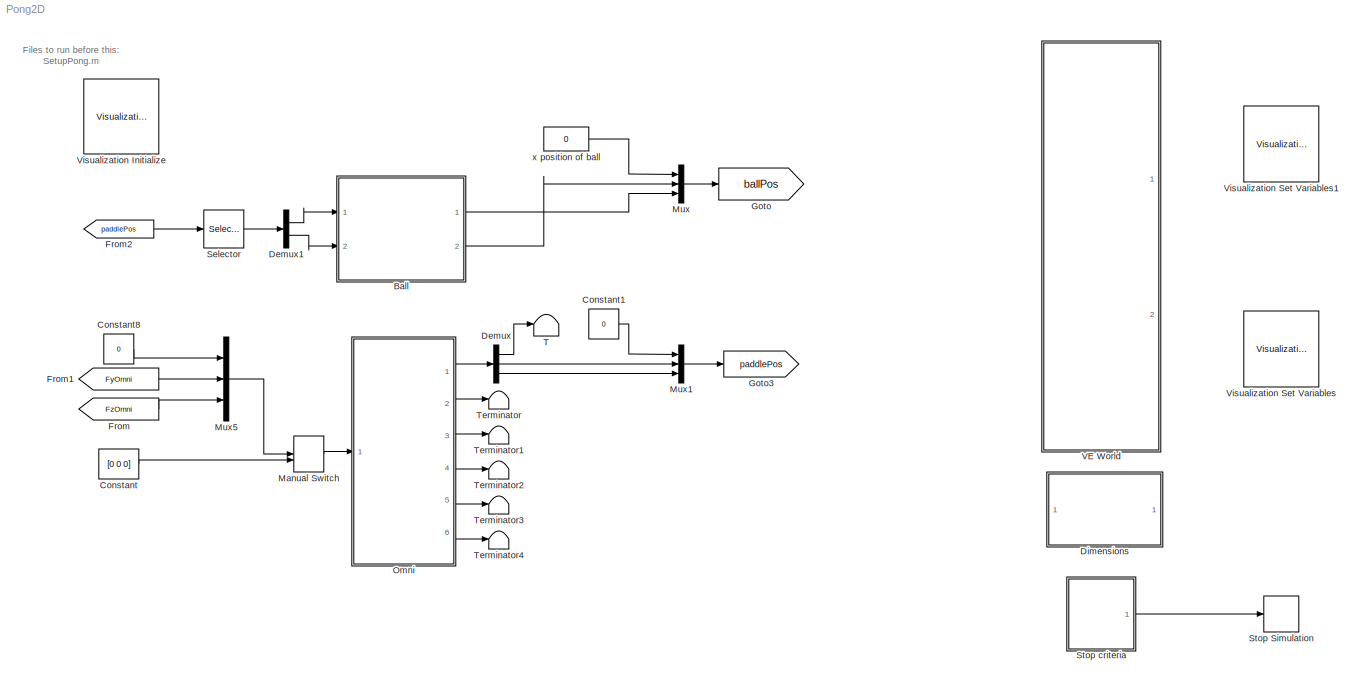
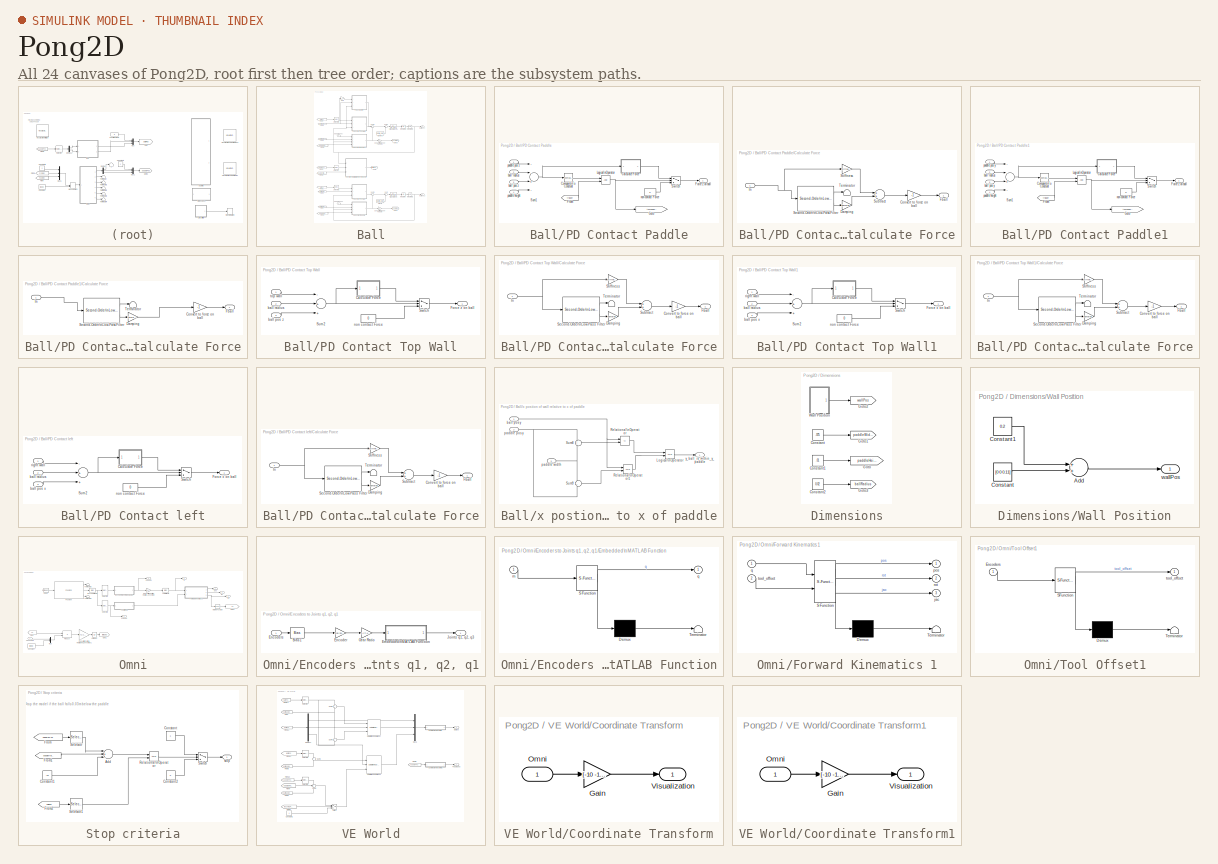
[diagram: thumbnail index - all 24 canvases of the model, root first then tree order]
MODEL Pong2D
KIND model
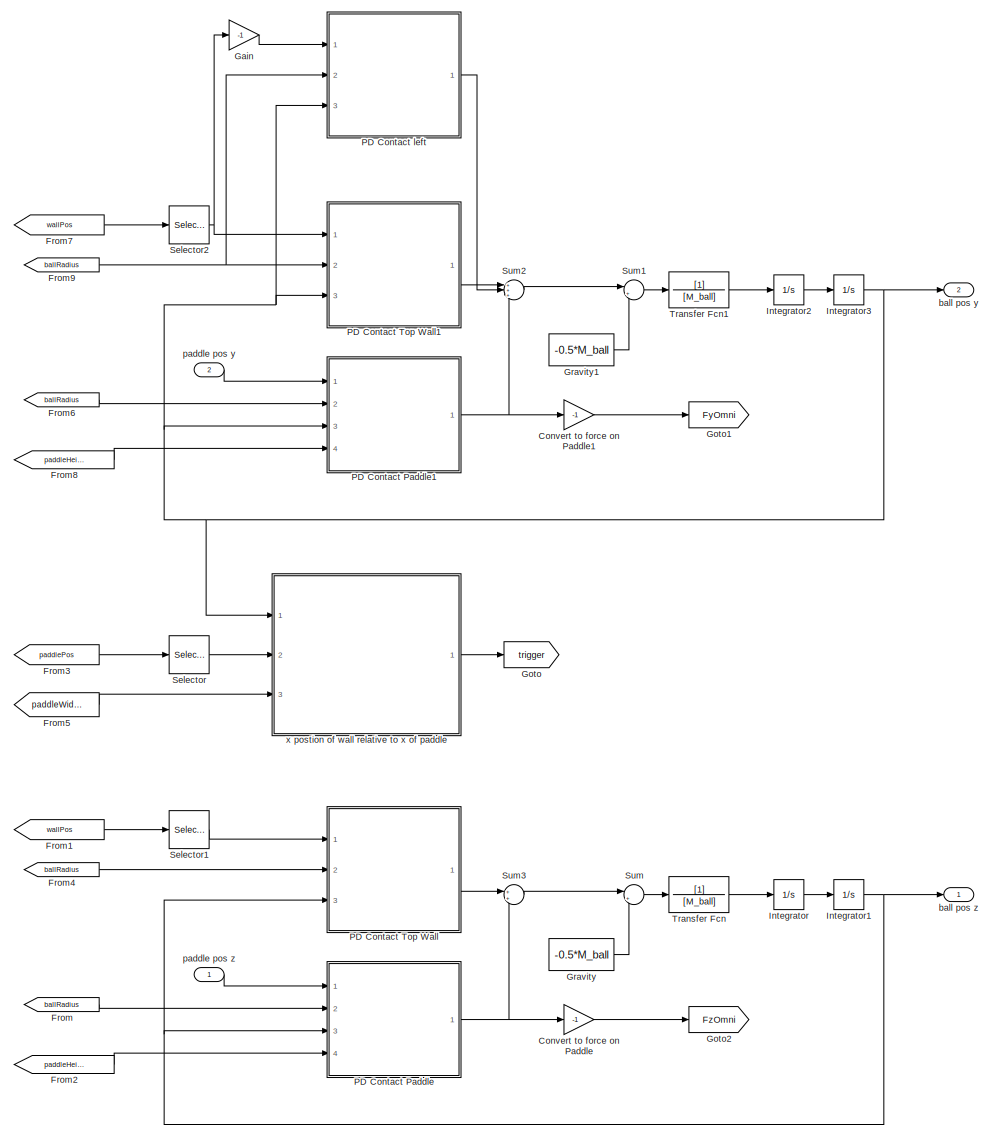
[diagram: Ball - part 1/1, most of the canvas]
BLOCK [SubSystem] Ball
  Ports = [2, 2]
  RequestExecContextInheritance = off
  SID = 1
  Variant = off
BLOCK [Gain] Ball/Convert to force on Paddle
  Gain = -1
  OutDataTypeStr = Inherit: Inherit via internal rule
  ParamDataTypeStr = Inherit: Inherit via internal rule
  SID = 4
  SaturateOnIntegerOverflow = off
BLOCK [Gain] Ball/Convert to force on Paddle1
  Gain = -1
  OutDataTypeStr = Inherit: Inherit via internal rule
  ParamDataTypeStr = Inherit: Inherit via internal rule
  SID = 334
  SaturateOnIntegerOverflow = off
BLOCK [From] Ball/From
  CloseFcn = tagdialog Close
  GotoTag = ballRadius
  SID = 7
  TagVisibility = global
BLOCK [From] Ball/From1
  CloseFcn = tagdialog Close
  GotoTag = wallPos
  SID = 8
  TagVisibility = global
BLOCK [From] Ball/From2
  CloseFcn = tagdialog Close
  GotoTag = paddleHeight
  SID = 9
  TagVisibility = global
BLOCK [From] Ball/From3
  CloseFcn = tagdialog Close
  GotoTag = paddlePos
  SID = 10
  TagVisibility = global
BLOCK [From] Ball/From4
  CloseFcn = tagdialog Close
  GotoTag = ballRadius
  SID = 11
  TagVisibility = global
BLOCK [From] Ball/From5
  CloseFcn = tagdialog Close
  GotoTag = paddleWidth
  SID = 12
  TagVisibility = global
BLOCK [From] Ball/From6
  CloseFcn = tagdialog Close
  GotoTag = ballRadius
  SID = 335
  TagVisibility = global
BLOCK [From] Ball/From7
  CloseFcn = tagdialog Close
  GotoTag = wallPos
  SID = 336
  TagVisibility = global
BLOCK [From] Ball/From8
  CloseFcn = tagdialog Close
  GotoTag = paddleHeight
  SID = 337
  TagVisibility = global
BLOCK [From] Ball/From9
  CloseFcn = tagdialog Close
  GotoTag = ballRadius
  SID = 338
  TagVisibility = global
BLOCK [Gain] Ball/Gain
  Gain = -1
  OutDataTypeStr = Inherit: Inherit via internal rule
  ParamDataTypeStr = Inherit: Inherit via internal rule
  SID = 404
  SaturateOnIntegerOverflow = off
BLOCK [Goto] Ball/Goto
  GotoTag = trigger
  SID = 13
  TagVisibility = global
BLOCK [Goto] Ball/Goto1
  GotoTag = FyOmni
  SID = 339
  TagVisibility = global
BLOCK [Goto] Ball/Goto2
  GotoTag = FzOmni
  SID = 14
  TagVisibility = global
BLOCK [Constant] Ball/Gravity
  SID = 15
  SampleTime = 0
  Value = -0.5*M_ball
BLOCK [Constant] Ball/Gravity1
  SID = 340
  SampleTime = 0
  Value = -0.5*M_ball
BLOCK [Integrator] Ball/Integrator
  Ports = [1, 1]
  SID = 16
BLOCK [Integrator] Ball/Integrator1
  Ports = [1, 1]
  SID = 17
BLOCK [Integrator] Ball/Integrator2
  Ports = [1, 1]
  SID = 341
BLOCK [Integrator] Ball/Integrator3
  Ports = [1, 1]
  SID = 342
BLOCK [SubSystem] Ball/PD Contact Paddle
  Ports = [4, 1]
  RequestExecContextInheritance = off
  SID = 18
  Variant = off
BLOCK [SubSystem] Ball/PD Contact Paddle/Calculate Force
  Ports = [1, 1]
  RequestExecContextInheritance = off
  SID = 23
  Variant = off
BLOCK [Gain] Ball/PD Contact Paddle/Calculate Force/Convert to force on ball
  Gain = -1
  OutDataTypeStr = Inherit: Inherit via internal rule
  ParamDataTypeStr = Inherit: Inherit via internal rule
  SID = 26
  SaturateOnIntegerOverflow = off
BLOCK [Gain] Ball/PD Contact Paddle/Calculate Force/Damping
  Gain = damping
  OutDataTypeStr = Inherit: Inherit via internal rule
  ParamDataTypeStr = Inherit: Inherit via internal rule
  SID = 27
  SaturateOnIntegerOverflow = off
BLOCK [Outport] Ball/PD Contact Paddle/Calculate Force/Fball
  IconDisplay = Port number
  SID = 32
BLOCK [Inport] Ball/PD Contact Paddle/Calculate Force/In
  IconDisplay = Port number
  SID = 24
BLOCK [Reference] Ball/PD Contact Paddle/Calculate Force/Second-Order\nLow-Pass Filter  REF=quarc_library/Continuous/Second-Order\nLow-Pass Filter
  Ports = [1, 2]
  SID = 312
  SourceBlock = quarc_library/Continuous/Second-Order\nLow-Pass Filter
  SourceType = Second-Order Low-Pass Filter
  input_init = 0
  input_width = 200
  input_zeta = 1
  params_source = Internal (dialog parameters)
BLOCK [Gain] Ball/PD Contact Paddle/Calculate Force/Stiffness
  Gain = stiffness
  OutDataTypeStr = Inherit: Inherit via internal rule
  ParamDataTypeStr = Inherit: Inherit via internal rule
  SID = 28
  SaturateOnIntegerOverflow = off
BLOCK [Sum] Ball/PD Contact Paddle/Calculate Force/Subtract
  InputSameDT = off
  OutDataTypeStr = Inherit: Inherit via internal rule
  Ports = [2, 1]
  SID = 29
  SaturateOnIntegerOverflow = off
BLOCK [Terminator] Ball/PD Contact Paddle/Calculate Force/Terminator
  SID = 303
BLOCK [Reference] Ball/PD Contact Paddle/Compare\nTo Constant  REF=simulink/Logic and Bit\nOperations/Compare\nTo Constant
  OutDataTypeStr = uint8
  Ports = [1, 1]
  SID = 33
  SourceBlock = simulink/Logic and Bit\nOperations/Compare\nTo Constant
  SourceType = Compare To Constant
  ZeroCross = off
  const = 0
  relop = <=
BLOCK [Outport] Ball/PD Contact Paddle/Force z on ball
  IconDisplay = Port number
  SID = 40
BLOCK [From] Ball/PD Contact Paddle/From
  CloseFcn = tagdialog Close
  GotoTag = trigger
  SID = 34
  TagVisibility = global
BLOCK [Goto] Ball/PD Contact Paddle/Goto
  GotoTag = touchingPaddle
  SID = 35
  TagVisibility = global
BLOCK [Logic] Ball/PD Contact Paddle/Logical\nOperator
  AllPortsSameDT = off
  OutDataTypeStr = boolean
  Ports = [2, 1]
  SID = 36
BLOCK [Sum] Ball/PD Contact Paddle/Sum1
  InputSameDT = off
  Inputs = --+-
  OutDataTypeStr = Inherit: Inherit via internal rule
  Ports = [4, 1]
  SID = 37
  SaturateOnIntegerOverflow = off
BLOCK [Switch] Ball/PD Contact Paddle/Switch
  Criteria = u2 > Threshold
  InputSameDT = off
  SID = 38
  SaturateOnIntegerOverflow = off
BLOCK [Inport] Ball/PD Contact Paddle/ball pos z
  IconDisplay = Port number
  Port = 3
  SID = 21
BLOCK [Inport] Ball/PD Contact Paddle/ball radius
  IconDisplay = Port number
  Port = 2
  SID = 20
BLOCK [Constant] Ball/PD Contact Paddle/non contact Force
  SID = 39
  SampleTime = 0
  Value = 0
  VectorParams1D = off
BLOCK [Inport] Ball/PD Contact Paddle/paddle height
  IconDisplay = Port number
  Port = 4
  SID = 22
BLOCK [Inport] Ball/PD Contact Paddle/paddle pos z
  IconDisplay = Port number
  SID = 19
BLOCK [SubSystem] Ball/PD Contact Paddle1
  Ports = [4, 1]
  RequestExecContextInheritance = off
  SID = 343
  Variant = off
BLOCK [SubSystem] Ball/PD Contact Paddle1/Calculate Force
  Ports = [1, 1]
  RequestExecContextInheritance = off
  SID = 348
  Variant = off
BLOCK [Gain] Ball/PD Contact Paddle1/Calculate Force/Convert to force on ball
  Gain = -1
  OutDataTypeStr = Inherit: Inherit via internal rule
  ParamDataTypeStr = Inherit: Inherit via internal rule
  SID = 350
  SaturateOnIntegerOverflow = off
BLOCK [Gain] Ball/PD Contact Paddle1/Calculate Force/Damping
  Gain = lateral_damping
  OutDataTypeStr = Inherit: Inherit via internal rule
  ParamDataTypeStr = Inherit: Inherit via internal rule
  SID = 351
  SaturateOnIntegerOverflow = off
BLOCK [Outport] Ball/PD Contact Paddle1/Calculate Force/Fball
  IconDisplay = Port number
  SID = 356
BLOCK [Inport] Ball/PD Contact Paddle1/Calculate Force/In
  IconDisplay = Port number
  SID = 349
BLOCK [Reference] Ball/PD Contact Paddle1/Calculate Force/Second-Order\nLow-Pass Filter  REF=quarc_library/Continuous/Second-Order\nLow-Pass Filter
  Ports = [1, 2]
  SID = 352
  SourceBlock = quarc_library/Continuous/Second-Order\nLow-Pass Filter
  SourceType = Second-Order Low-Pass Filter
  input_init = 0
  input_width = 200
  input_zeta = 1
  params_source = Internal (dialog parameters)
BLOCK [Terminator] Ball/PD Contact Paddle1/Calculate Force/Terminator
  SID = 355
BLOCK [Reference] Ball/PD Contact Paddle1/Compare\nTo Constant  REF=simulink/Logic and Bit\nOperations/Compare\nTo Constant
  OutDataTypeStr = uint8
  Ports = [1, 1]
  SID = 357
  SourceBlock = simulink/Logic and Bit\nOperations/Compare\nTo Constant
  SourceType = Compare To Constant
  ZeroCross = off
  const = 0
  relop = <=
BLOCK [Outport] Ball/PD Contact Paddle1/Force z on ball
  IconDisplay = Port number
  SID = 364
BLOCK [From] Ball/PD Contact Paddle1/From
  CloseFcn = tagdialog Close
  GotoTag = trigger
  SID = 358
  TagVisibility = global
BLOCK [Goto] Ball/PD Contact Paddle1/Goto
  GotoTag = touchingPaddle
  SID = 359
  TagVisibility = global
BLOCK [Logic] Ball/PD Contact Paddle1/Logical\nOperator
  AllPortsSameDT = off
  OutDataTypeStr = boolean
  Ports = [2, 1]
  SID = 360
BLOCK [Sum] Ball/PD Contact Paddle1/Sum1
  InputSameDT = off
  Inputs = --+-
  OutDataTypeStr = Inherit: Inherit via internal rule
  Ports = [4, 1]
  SID = 361
  SaturateOnIntegerOverflow = off
BLOCK [Switch] Ball/PD Contact Paddle1/Switch
  Criteria = u2 > Threshold
  InputSameDT = off
  SID = 362
  SaturateOnIntegerOverflow = off
BLOCK [Inport] Ball/PD Contact Paddle1/ball pos y
  IconDisplay = Port number
  Port = 3
  SID = 346
BLOCK [Inport] Ball/PD Contact Paddle1/ball radius
  IconDisplay = Port number
  Port = 2
  SID = 345
BLOCK [Constant] Ball/PD Contact Paddle1/non contact Force
  SID = 363
  SampleTime = 0
  Value = 0
  VectorParams1D = off
BLOCK [Inport] Ball/PD Contact Paddle1/paddle height
  IconDisplay = Port number
  Port = 4
  SID = 347
BLOCK [Inport] Ball/PD Contact Paddle1/paddle pos y
  IconDisplay = Port number
  SID = 344
BLOCK [SubSystem] Ball/PD Contact Top Wall
  Ports = [3, 1]
  RequestExecContextInheritance = off
  SID = 41
  Variant = off
BLOCK [SubSystem] Ball/PD Contact Top Wall/Calculate Force
  Ports = [1, 1]
  RequestExecContextInheritance = off
  SID = 45
  Variant = off
BLOCK [Gain] Ball/PD Contact Top Wall/Calculate Force/Convert to force on ball
  Gain = -1
  OutDataTypeStr = Inherit: Inherit via internal rule
  ParamDataTypeStr = Inherit: Inherit via internal rule
  SID = 48
  SaturateOnIntegerOverflow = off
BLOCK [Gain] Ball/PD Contact Top Wall/Calculate Force/Damping
  Gain = damping
  OutDataTypeStr = Inherit: Inherit via internal rule
  ParamDataTypeStr = Inherit: Inherit via internal rule
  SID = 49
  SaturateOnIntegerOverflow = off
BLOCK [Outport] Ball/PD Contact Top Wall/Calculate Force/Fball
  IconDisplay = Port number
  SID = 54
BLOCK [Inport] Ball/PD Contact Top Wall/Calculate Force/In
  IconDisplay = Port number
  SID = 46
BLOCK [Reference] Ball/PD Contact Top Wall/Calculate Force/Second-Order\nLow-Pass Filter  REF=quarc_library/Continuous/Second-Order\nLow-Pass Filter
  Ports = [1, 2]
  SID = 311
  SourceBlock = quarc_library/Continuous/Second-Order\nLow-Pass Filter
  SourceType = Second-Order Low-Pass Filter
  input_init = 0
  input_width = 200
  input_zeta = 1
  params_source = Internal (dialog parameters)
BLOCK [Gain] Ball/PD Contact Top Wall/Calculate Force/Stiffness
  Gain = stiffness
  OutDataTypeStr = Inherit: Inherit via internal rule
  ParamDataTypeStr = Inherit: Inherit via internal rule
  SID = 50
  SaturateOnIntegerOverflow = off
BLOCK [Sum] Ball/PD Contact Top Wall/Calculate Force/Subtract
  InputSameDT = off
  OutDataTypeStr = Inherit: Inherit via internal rule
  Ports = [2, 1]
  SID = 51
  SaturateOnIntegerOverflow = off
BLOCK [Terminator] Ball/PD Contact Top Wall/Calculate Force/Terminator
  SID = 302
BLOCK [Outport] Ball/PD Contact Top Wall/Force z on ball 
  IconDisplay = Port number
  SID = 58
BLOCK [Sum] Ball/PD Contact Top Wall/Sum2
  InputSameDT = off
  Inputs = -++
  OutDataTypeStr = Inherit: Inherit via internal rule
  Ports = [3, 1]
  SID = 55
  SaturateOnIntegerOverflow = off
BLOCK [Switch] Ball/PD Contact Top Wall/Switch
  InputSameDT = off
  SID = 56
  SaturateOnIntegerOverflow = off
BLOCK [Inport] Ball/PD Contact Top Wall/ball pos z
  IconDisplay = Port number
  Port = 3
  SID = 44
BLOCK [Inport] Ball/PD Contact Top Wall/ball radius
  IconDisplay = Port number
  Port = 2
  SID = 43
BLOCK [Constant] Ball/PD Contact Top Wall/non contact Force
  SID = 57
  SampleTime = 0
  Value = 0
  VectorParams1D = off
BLOCK [Inport] Ball/PD Contact Top Wall/top wall
  IconDisplay = Port number
  SID = 42
BLOCK [SubSystem] Ball/PD Contact Top Wall1
  Ports = [3, 1]
  RequestExecContextInheritance = off
  SID = 315
  Variant = off
BLOCK [SubSystem] Ball/PD Contact Top Wall1/Calculate Force
  Ports = [1, 1]
  RequestExecContextInheritance = off
  SID = 319
  Variant = off
BLOCK [Gain] Ball/PD Contact Top Wall1/Calculate Force/Convert to force on ball
  Gain = -1
  OutDataTypeStr = Inherit: Inherit via internal rule
  ParamDataTypeStr = Inherit: Inherit via internal rule
  SID = 321
  SaturateOnIntegerOverflow = off
BLOCK [Gain] Ball/PD Contact Top Wall1/Calculate Force/Damping
  Gain = damping
  OutDataTypeStr = Inherit: Inherit via internal rule
  ParamDataTypeStr = Inherit: Inherit via internal rule
  SID = 322
  SaturateOnIntegerOverflow = off
BLOCK [Outport] Ball/PD Contact Top Wall1/Calculate Force/Fball
  IconDisplay = Port number
  SID = 327
BLOCK [Inport] Ball/PD Contact Top Wall1/Calculate Force/In
  IconDisplay = Port number
  SID = 320
BLOCK [Reference] Ball/PD Contact Top Wall1/Calculate Force/Second-Order\nLow-Pass Filter  REF=quarc_library/Continuous/Second-Order\nLow-Pass Filter
  Ports = [1, 2]
  SID = 323
  SourceBlock = quarc_library/Continuous/Second-Order\nLow-Pass Filter
  SourceType = Second-Order Low-Pass Filter
  input_init = 0
  input_width = 200
  input_zeta = 1
  params_source = Internal (dialog parameters)
BLOCK [Gain] Ball/PD Contact Top Wall1/Calculate Force/Stiffness
  Gain = stiffness
  OutDataTypeStr = Inherit: Inherit via internal rule
  ParamDataTypeStr = Inherit: Inherit via internal rule
  SID = 324
  SaturateOnIntegerOverflow = off
BLOCK [Sum] Ball/PD Contact Top Wall1/Calculate Force/Subtract
  InputSameDT = off
  OutDataTypeStr = Inherit: Inherit via internal rule
  Ports = [2, 1]
  SID = 325
  SaturateOnIntegerOverflow = off
BLOCK [Terminator] Ball/PD Contact Top Wall1/Calculate Force/Terminator
  SID = 326
BLOCK [Outport] Ball/PD Contact Top Wall1/Force x on ball 
  IconDisplay = Port number
  SID = 331
BLOCK [Sum] Ball/PD Contact Top Wall1/Sum2
  InputSameDT = off
  Inputs = -++
  OutDataTypeStr = Inherit: Inherit via internal rule
  Ports = [3, 1]
  SID = 328
  SaturateOnIntegerOverflow = off
BLOCK [Switch] Ball/PD Contact Top Wall1/Switch
  InputSameDT = off
  SID = 329
  SaturateOnIntegerOverflow = off
BLOCK [Inport] Ball/PD Contact Top Wall1/ball pos x
  IconDisplay = Port number
  Port = 3
  SID = 318
BLOCK [Inport] Ball/PD Contact Top Wall1/ball radius
  IconDisplay = Port number
  Port = 2
  SID = 317
BLOCK [Constant] Ball/PD Contact Top Wall1/non contact Force
  SID = 330
  SampleTime = 0
  Value = 0
  VectorParams1D = off
BLOCK [Inport] Ball/PD Contact Top Wall1/right wall
  IconDisplay = Port number
  SID = 316
BLOCK [SubSystem] Ball/PD Contact left
  Ports = [3, 1]
  RequestExecContextInheritance = off
  SID = 387
  Variant = off
BLOCK [SubSystem] Ball/PD Contact left/Calculate Force
  Ports = [1, 1]
  RequestExecContextInheritance = off
  SID = 391
  Variant = off
BLOCK [Gain] Ball/PD Contact left/Calculate Force/Convert to force on ball
  Gain = -1
  OutDataTypeStr = Inherit: Inherit via internal rule
  ParamDataTypeStr = Inherit: Inherit via internal rule
  SID = 393
  SaturateOnIntegerOverflow = off
BLOCK [Gain] Ball/PD Contact left/Calculate Force/Damping
  Gain = damping
  OutDataTypeStr = Inherit: Inherit via internal rule
  ParamDataTypeStr = Inherit: Inherit via internal rule
  SID = 394
  SaturateOnIntegerOverflow = off
BLOCK [Outport] Ball/PD Contact left/Calculate Force/Fball
  IconDisplay = Port number
  SID = 399
BLOCK [Inport] Ball/PD Contact left/Calculate Force/In
  IconDisplay = Port number
  SID = 392
BLOCK [Reference] Ball/PD Contact left/Calculate Force/Second-Order\nLow-Pass Filter  REF=quarc_library/Continuous/Second-Order\nLow-Pass Filter
  Ports = [1, 2]
  SID = 395
  SourceBlock = quarc_library/Continuous/Second-Order\nLow-Pass Filter
  SourceType = Second-Order Low-Pass Filter
  input_init = 0
  input_width = 200
  input_zeta = 1
  params_source = Internal (dialog parameters)
BLOCK [Gain] Ball/PD Contact left/Calculate Force/Stiffness
  Gain = stiffness
  OutDataTypeStr = Inherit: Inherit via internal rule
  ParamDataTypeStr = Inherit: Inherit via internal rule
  SID = 396
  SaturateOnIntegerOverflow = off
BLOCK [Sum] Ball/PD Contact left/Calculate Force/Subtract
  InputSameDT = off
  OutDataTypeStr = Inherit: Inherit via internal rule
  Ports = [2, 1]
  SID = 397
  SaturateOnIntegerOverflow = off
BLOCK [Terminator] Ball/PD Contact left/Calculate Force/Terminator
  SID = 398
BLOCK [Outport] Ball/PD Contact left/Force x on ball 
  IconDisplay = Port number
  SID = 403
BLOCK [Sum] Ball/PD Contact left/Sum2
  InputSameDT = off
  Inputs = -++
  OutDataTypeStr = Inherit: Inherit via internal rule
  Ports = [3, 1]
  SID = 400
  SaturateOnIntegerOverflow = off
BLOCK [Switch] Ball/PD Contact left/Switch
  InputSameDT = off
  SID = 401
  SaturateOnIntegerOverflow = off
BLOCK [Inport] Ball/PD Contact left/ball pos x
  IconDisplay = Port number
  Port = 3
  SID = 390
BLOCK [Inport] Ball/PD Contact left/ball radius
  IconDisplay = Port number
  Port = 2
  SID = 389
BLOCK [Constant] Ball/PD Contact left/non contact Force
  SID = 402
  SampleTime = 0
  Value = 0
  VectorParams1D = off
BLOCK [Inport] Ball/PD Contact left/right wall
  IconDisplay = Port number
  SID = 388
BLOCK [Selector] Ball/Selector
  IndexOptions = Index vector (dialog)
  Indices = 2
  InputPortWidth = 3
  OutputSizes = 1
  Ports = [1, 1]
  SID = 300
BLOCK [Selector] Ball/Selector1
  IndexOptions = Index vector (dialog)
  Indices = 3
  InputPortWidth = 3
  OutputSizes = 1
  Ports = [1, 1]
  SID = 301
BLOCK [Selector] Ball/Selector2
  IndexOptions = Index vector (dialog)
  Indices = 1
  InputPortWidth = 3
  OutputSizes = 1
  Ports = [1, 1]
  SID = 382
BLOCK [Sum] Ball/Sum
  IconShape = round
  InputSameDT = off
  Inputs = |++
  OutDataTypeStr = Inherit: Inherit via internal rule
  Ports = [2, 1]
  SID = 59
  SaturateOnIntegerOverflow = off
BLOCK [Sum] Ball/Sum1
  IconShape = round
  InputSameDT = off
  Inputs = |++
  OutDataTypeStr = Inherit: Inherit via internal rule
  Ports = [2, 1]
  SID = 383
  SaturateOnIntegerOverflow = off
BLOCK [Sum] Ball/Sum2
  IconShape = round
  InputSameDT = off
  Inputs = +++
  OutDataTypeStr = Inherit: Inherit via internal rule
  Ports = [3, 1]
  SID = 384
  SaturateOnIntegerOverflow = off
BLOCK [Sum] Ball/Sum3
  IconShape = round
  InputSameDT = off
  OutDataTypeStr = Inherit: Inherit via internal rule
  Ports = [2, 1]
  SID = 60
  SaturateOnIntegerOverflow = off
BLOCK [TransferFcn] Ball/Transfer Fcn
  Denominator = [M_ball]
  SID = 61
BLOCK [TransferFcn] Ball/Transfer Fcn1
  Denominator = [M_ball]
  SID = 385
BLOCK [Outport] Ball/ball pos y
  IconDisplay = Port number
  Port = 2
  SID = 386
BLOCK [Outport] Ball/ball pos z
  IconDisplay = Port number
  SID = 72
BLOCK [Inport] Ball/paddle pos y
  IconDisplay = Port number
  Port = 2
  SID = 333
BLOCK [Inport] Ball/paddle pos z
  IconDisplay = Port number
  SID = 2
BLOCK [SubSystem] Ball/x postion of wall relative to x of paddle
  Ports = [3, 1]
  RequestExecContextInheritance = off
  SID = 62
  Variant = off
BLOCK [Logic] Ball/x postion of wall relative to x of paddle/Logical\nOperator
  AllPortsSameDT = off
  OutDataTypeStr = boolean
  Ports = [2, 1]
  SID = 66
BLOCK [RelationalOperator] Ball/x postion of wall relative to x of paddle/Relational\nOperator
  InputSameDT = off
  Operator = <=
  OutDataTypeStr = boolean
  Ports = [2, 1]
  SID = 67
BLOCK [RelationalOperator] Ball/x postion of wall relative to x of paddle/Relational\nOperator1
  InputSameDT = off
  OutDataTypeStr = boolean
  Ports = [2, 1]
  SID = 68
BLOCK [Sum] Ball/x postion of wall relative to x of paddle/Sum8
  IconShape = round
  InputSameDT = off
  OutDataTypeStr = Inherit: Inherit via internal rule
  Ports = [2, 1]
  SID = 69
  SaturateOnIntegerOverflow = off
BLOCK [Sum] Ball/x postion of wall relative to x of paddle/Sum9
  IconShape = round
  InputSameDT = off
  Inputs = -+
  OutDataTypeStr = Inherit: Inherit via internal rule
  Ports = [2, 1]
  SID = 70
  SaturateOnIntegerOverflow = off
BLOCK [Inport] Ball/x postion of wall relative to x of paddle/ball pos y
  IconDisplay = Port number
  SID = 63
BLOCK [Inport] Ball/x postion of wall relative to x of paddle/paddle pos y
  IconDisplay = Port number
  Port = 2
  SID = 64
BLOCK [Inport] Ball/x postion of wall relative to x of paddle/paddle width
  IconDisplay = Port number
  Port = 3
  SID = 65
BLOCK [Outport] Ball/x postion of wall relative to x of paddle/y_ball_is_within_y_paddle
  IconDisplay = Port number
  SID = 71
BLOCK [Constant] Constant
  SID = 73
  Value = [0 0 0]
BLOCK [Constant] Constant1
  SID = 74
  SampleTime = 0
  Value = 0
  VectorParams1D = off
BLOCK [Constant] Constant8
  SID = 75
  SampleTime = 0
  Value = 0
  VectorParams1D = off
BLOCK [Demux] Demux
  DisplayOption = bar
  Outputs = 3
  Ports = [1, 3]
  SID = 81
BLOCK [Demux] Demux1
  DisplayOption = bar
  Outputs = 2
  Ports = [1, 2]
  SID = 405
BLOCK [SubSystem] Dimensions
  Ports = []
  RequestExecContextInheritance = off
  SID = 83
  Variant = off
BLOCK [Constant] Dimensions/Constant
  SID = 84
  SampleTime = 0
  Value = .075
  VectorParams1D = off
BLOCK [Constant] Dimensions/Constant1
  SID = 85
  SampleTime = 0
  Value = .01
  VectorParams1D = off
BLOCK [Constant] Dimensions/Constant2
  SID = 86
  Value = 0.02
  VectorParams1D = off
BLOCK [Goto] Dimensions/Goto
  GotoTag = paddleHeight
  SID = 87
  TagVisibility = global
BLOCK [Goto] Dimensions/Goto1
  GotoTag = paddleWidth
  SID = 88
  TagVisibility = global
BLOCK [Goto] Dimensions/Goto2
  GotoTag = wallPos
  SID = 89
  TagVisibility = global
BLOCK [Goto] Dimensions/Goto3
  GotoTag = ballRadius
  SID = 90
  TagVisibility = global
BLOCK [SubSystem] Dimensions/Wall Position
  Ports = [0, 1]
  RequestExecContextInheritance = off
  SID = 91
  Variant = off
BLOCK [Sum] Dimensions/Wall Position/Add
  InputSameDT = off
  OutDataTypeStr = Inherit: Inherit via internal rule
  Ports = [2, 1]
  SID = 92
  SaturateOnIntegerOverflow = off
BLOCK [Constant] Dimensions/Wall Position/Constant
  SID = 93
  SampleTime = 0
  Value = [0 0 0.11]
  VectorParams1D = off
BLOCK [Constant] Dimensions/Wall Position/Constant1
  SID = 94
  SampleTime = 0
  Value = 0.2
BLOCK [Outport] Dimensions/Wall Position/wallPos
  IconDisplay = Port number
  SID = 97
BLOCK [From] From
  CloseFcn = tagdialog Close
  GotoTag = FzOmni
  SID = 98
  TagVisibility = global
BLOCK [From] From1
  CloseFcn = tagdialog Close
  GotoTag = FyOmni
  SID = 406
  TagVisibility = global
BLOCK [From] From2
  CloseFcn = tagdialog Close
  GotoTag = paddlePos
  SID = 99
  TagVisibility = global
BLOCK [Goto] Goto
  GotoTag = ballPos
  SID = 100
  TagVisibility = global
BLOCK [Goto] Goto3
  GotoTag = paddlePos
  SID = 101
  TagVisibility = global
BLOCK [ManualSwitch] Manual Switch
  SID = 310
BLOCK [Mux] Mux
  DisplayOption = bar
  Inputs = 3
  Ports = [3, 1]
  SID = 103
BLOCK [Mux] Mux1
  DisplayOption = bar
  Inputs = 3
  Ports = [3, 1]
  SID = 104
BLOCK [Mux] Mux5
  DisplayOption = bar
  Inputs = 3
  Ports = [3, 1]
  SID = 105
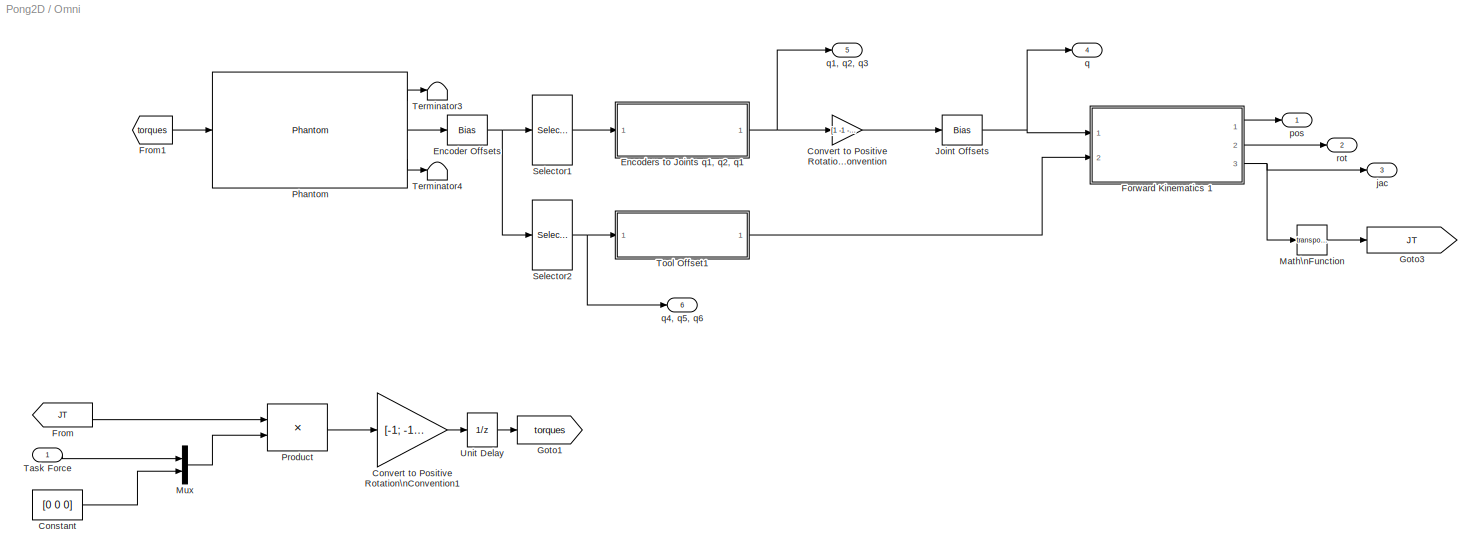
BLOCK [SubSystem] Omni
  Ports = [1, 6]
  RequestExecContextInheritance = off
  SID = 170
  Variant = off
BLOCK [Constant] Omni/Constant
  SID = 172
  Value = [0 0 0]
BLOCK [Gain] Omni/Convert to Positive Rotation\nConvention
  Gain = [1 -1 -1]
  OutDataTypeStr = Inherit: Inherit via internal rule
  ParamDataTypeStr = Inherit: Inherit via internal rule
  SID = 173
  SaturateOnIntegerOverflow = off
BLOCK [Gain] Omni/Convert to Positive Rotation\nConvention1
  Gain = [-1; -1 ;-1]
  OutDataTypeStr = Inherit: Inherit via internal rule
  ParamDataTypeStr = Inherit: Inherit via internal rule
  SID = 174
  SaturateOnIntegerOverflow = off
BLOCK [Bias] Omni/Encoder Offsets
  Bias = [0 659 914 0 -1000 0]
  SID = 175
  SaturateOnIntegerOverflow = off
BLOCK [SubSystem] Omni/Encoders to Joints q1, q2, q1
  Ports = [1, 1]
  RequestExecContextInheritance = off
  SID = 176
  Variant = off
BLOCK [Bias] Omni/Encoders to Joints q1, q2, q1/Bias1
  Bias = [0 -659 -910]
  SID = 178
  SaturateOnIntegerOverflow = off
BLOCK [SubSystem] Omni/Encoders to Joints q1, q2, q1/Embedded\nMATLAB Function
  ErrorFcn = Stateflow.Translate.translate
  PermitHierarchicalResolution = ExplicitOnly
  Ports = [1, 1]
  RequestExecContextInheritance = off
  SFBlockType = MATLAB Function
  SID = 179
  TreatAsAtomicUnit = on
  Variant = off
BLOCK [Demux] Omni/Encoders to Joints q1, q2, q1/Embedded\nMATLAB Function/ Demux 
  Outputs = 1
  Ports = [1, 1]
  SID = 179::19
BLOCK [S-Function] Omni/Encoders to Joints q1, q2, q1/Embedded\nMATLAB Function/ SFunction 
  EnableBusSupport = on
  FunctionName = sf_sfun
  PortCounts = [1 2]
  Ports = [1, 2]
  SFunctionDeploymentMode = off
  SID = 179::18
  Tag = Stateflow S-Function Pong2D 8
BLOCK [Terminator] Omni/Encoders to Joints q1, q2, q1/Embedded\nMATLAB Function/ Terminator 
  SID = 179::20
BLOCK [Inport] Omni/Encoders to Joints q1, q2, q1/Embedded\nMATLAB Function/m
  IconDisplay = Port number
  SID = 179::1
BLOCK [Outport] Omni/Encoders to Joints q1, q2, q1/Embedded\nMATLAB Function/q
  IconDisplay = Port number
  SID = 179::5
BLOCK [Gain] Omni/Encoders to Joints q1, q2, q1/Encoder
  Gain = 2*pi/2048
  OutDataTypeStr = Inherit: Inherit via internal rule
  ParamDataTypeStr = Inherit: Inherit via internal rule
  SID = 180
  SaturateOnIntegerOverflow = off
BLOCK [Inport] Omni/Encoders to Joints q1, q2, q1/Encoders
  IconDisplay = Port number
  SID = 177
BLOCK [Gain] Omni/Encoders to Joints q1, q2, q1/Gear Ratio
  Gain = 1./[7.461 -7.519 7.529]
  OutDataTypeStr = Inherit: Inherit via internal rule
  ParamDataTypeStr = Inherit: Inherit via internal rule
  SID = 181
  SaturateOnIntegerOverflow = off
BLOCK [Outport] Omni/Encoders to Joints q1, q2, q1/Joints q1, q2, q3
  IconDisplay = Port number
  SID = 182
BLOCK [SubSystem] Omni/Forward Kinematics 1
  ErrorFcn = Stateflow.Translate.translate
  PermitHierarchicalResolution = ExplicitOnly
  Ports = [2, 3]
  RequestExecContextInheritance = off
  SFBlockType = MATLAB Function
  SID = 183
  TreatAsAtomicUnit = on
  Variant = off
BLOCK [Demux] Omni/Forward Kinematics 1/ Demux 
  Outputs = 1
  Ports = [1, 1]
  SID = 183::22
BLOCK [S-Function] Omni/Forward Kinematics 1/ SFunction 
  EnableBusSupport = on
  FunctionName = sf_sfun
  PortCounts = [2 4]
  Ports = [2, 4]
  SFunctionDeploymentMode = off
  SID = 183::21
  Tag = Stateflow S-Function Pong2D 1
BLOCK [Terminator] Omni/Forward Kinematics 1/ Terminator 
  SID = 183::23
BLOCK [Outport] Omni/Forward Kinematics 1/jac
  IconDisplay = Port number
  Port = 3
  SID = 183::8
BLOCK [Outport] Omni/Forward Kinematics 1/pos
  IconDisplay = Port number
  SID = 183::6
BLOCK [Inport] Omni/Forward Kinematics 1/q
  IconDisplay = Port number
  SID = 183::1
BLOCK [Outport] Omni/Forward Kinematics 1/rot
  IconDisplay = Port number
  Port = 2
  SID = 183::7
BLOCK [Inport] Omni/Forward Kinematics 1/tool_offset
  IconDisplay = Port number
  Port = 2
  SID = 183::2
BLOCK [From] Omni/From
  CloseFcn = tagdialog Close
  GotoTag = JT
  SID = 184
BLOCK [From] Omni/From1
  CloseFcn = tagdialog Close
  GotoTag = torques
  SID = 185
BLOCK [Goto] Omni/Goto1
  GotoTag = torques
  SID = 186
BLOCK [Goto] Omni/Goto3
  GotoTag = JT
  SID = 187
BLOCK [Bias] Omni/Joint Offsets
  Bias = [0 0 pi()/2]
  SID = 188
  SaturateOnIntegerOverflow = off
BLOCK [Math] Omni/Math\nFunction
  Operator = transpose
  Ports = [1, 1]
  SID = 189
BLOCK [Mux] Omni/Mux
  DisplayOption = bar
  Inputs = 2
  Ports = [2, 1]
  SID = 190
BLOCK [Reference] Omni/Phantom  REF=quarc_library/Devices/Third-Party/SensAble/Phantom/Phantom
  AttributesFormatString = (%<device_name>)
  Ports = [1, 3]
  SID = 191
  SourceBlock = quarc_library/Devices/Third-Party/SensAble/Phantom/Phantom
  SourceType = Phantom
  device_name = Default Device
  input_type = Joint space
  is_7dof = off
  output_type = Encoders Values
  sample_time = -1
  velocity_limit = 1200
  velocity_limit_option = on
BLOCK [Product] Omni/Product
  InputSameDT = off
  Multiplication = Matrix(*)
  OutDataTypeStr = Inherit: Inherit via internal rule
  Ports = [2, 1]
  SID = 192
  SaturateOnIntegerOverflow = off
BLOCK [Selector] Omni/Selector1
  IndexOptions = Index vector (dialog)
  Indices = [1:3]
  InputPortWidth = 6
  OutputSizes = 1
  Ports = [1, 1]
  SID = 193
BLOCK [Selector] Omni/Selector2
  IndexOptions = Index vector (dialog)
  Indices = [4:6]
  InputPortWidth = 6
  OutputSizes = 1
  Ports = [1, 1]
  SID = 194
BLOCK [Inport] Omni/Task Force
  IconDisplay = Port number
  SID = 171
BLOCK [Terminator] Omni/Terminator3
  SID = 195
BLOCK [Terminator] Omni/Terminator4
  SID = 196
BLOCK [SubSystem] Omni/Tool Offset1
  ErrorFcn = Stateflow.Translate.translate
  PermitHierarchicalResolution = ExplicitOnly
  Ports = [1, 1]
  RequestExecContextInheritance = off
  SFBlockType = MATLAB Function
  SID = 197
  TreatAsAtomicUnit = on
  Variant = off
BLOCK [Demux] Omni/Tool Offset1/ Demux 
  Outputs = 1
  Ports = [1, 1]
  SID = 197::23
BLOCK [S-Function] Omni/Tool Offset1/ SFunction 
  EnableBusSupport = on
  FunctionName = sf_sfun
  PortCounts = [1 2]
  Ports = [1, 2]
  SFunctionDeploymentMode = off
  SID = 197::22
  Tag = Stateflow S-Function Pong2D 3
BLOCK [Terminator] Omni/Tool Offset1/ Terminator 
  SID = 197::24
BLOCK [Inport] Omni/Tool Offset1/Encoders
  IconDisplay = Port number
  SID = 197::1
BLOCK [Outport] Omni/Tool Offset1/tool_offset
  IconDisplay = Port number
  SID = 197::5
BLOCK [UnitDelay] Omni/Unit Delay
  InputProcessing = Elements as channels (sample based)
  SID = 198
  SampleTime = -1
BLOCK [Outport] Omni/jac
  IconDisplay = Port number
  Port = 3
  SID = 201
BLOCK [Outport] Omni/pos
  IconDisplay = Port number
  SID = 199
BLOCK [Outport] Omni/q
  IconDisplay = Port number
  Port = 4
  SID = 202
BLOCK [Outport] Omni/q1, q2, q3
  IconDisplay = Port number
  Port = 5
  SID = 203
BLOCK [Outport] Omni/q4, q5, q6
  IconDisplay = Port number
  Port = 6
  SID = 204
BLOCK [Outport] Omni/rot
  IconDisplay = Port number
  Port = 2
  SID = 200
BLOCK [Selector] Selector
  IndexOptions = Index vector (dialog)
  Indices = [3 2]
  InputPortWidth = 3
  OutputSizes = 1
  Ports = [1, 1]
  SID = 299
BLOCK [Stop] Stop Simulation
  SID = 107
BLOCK [SubSystem] Stop criteria
  Ports = [0, 1]
  RequestExecContextInheritance = off
  SID = 108
  Variant = off
BLOCK [Sum] Stop criteria/Add
  InputSameDT = off
  Inputs = |+--
  OutDataTypeStr = Inherit: Inherit via internal rule
  Ports = [3, 1]
  SID = 109
  SaturateOnIntegerOverflow = off
BLOCK [Constant] Stop criteria/Constant
  SID = 110
  SampleTime = 0
BLOCK [Constant] Stop criteria/Constant1
  SID = 111
  SampleTime = 0
  Value = .03
BLOCK [Constant] Stop criteria/Constant2
  SID = 112
  SampleTime = 0
  Value = 0
BLOCK [From] Stop criteria/From
  CloseFcn = tagdialog Close
  GotoTag = paddlePos
  SID = 115
  TagVisibility = global
BLOCK [From] Stop criteria/From1
  CloseFcn = tagdialog Close
  GotoTag = paddleHeight
  SID = 116
  TagVisibility = global
BLOCK [From] Stop criteria/From2
  CloseFcn = tagdialog Close
  GotoTag = ballPos
  SID = 117
  TagVisibility = global
BLOCK [RelationalOperator] Stop criteria/Relational\nOperator
  InputSameDT = off
  OutDataTypeStr = boolean
  Ports = [2, 1]
  SID = 118
BLOCK [Selector] Stop criteria/Selector
  IndexOptions = Index vector (dialog)
  Indices = 3
  InputPortWidth = 3
  OutputSizes = 1
  Ports = [1, 1]
  SID = 304
BLOCK [Selector] Stop criteria/Selector1
  IndexOptions = Index vector (dialog)
  Indices = 3
  InputPortWidth = 3
  OutputSizes = 1
  Ports = [1, 1]
  SID = 305
BLOCK [Switch] Stop criteria/Switch
  Criteria = u2 > Threshold
  InputSameDT = off
  SID = 119
  SaturateOnIntegerOverflow = off
BLOCK [Outport] Stop criteria/stop
  IconDisplay = Port number
  SID = 120
BLOCK [Terminator] T
  SID = 121
BLOCK [Terminator] Terminator
  SID = 294
BLOCK [Terminator] Terminator1
  SID = 295
BLOCK [Terminator] Terminator2
  SID = 296
BLOCK [Terminator] Terminator3
  SID = 297
BLOCK [Terminator] Terminator4
  SID = 298
BLOCK [SubSystem] VE World
  Ports = [0, 2]
  RequestExecContextInheritance = off
  SID = 122
  Variant = off
BLOCK [Outport] VE World/Ball pos
  IconDisplay = Port number
  SID = 162
BLOCK [Constant] VE World/Constant1
  SID = 123
  Value = -1
BLOCK [SubSystem] VE World/Coordinate Transform
  Ports = [1, 1]
  RequestExecContextInheritance = off
  SID = 205
  Variant = off
BLOCK [Gain] VE World/Coordinate Transform/Gain
  Gain = [-10 -10 10]
  OutDataTypeStr = Inherit: Inherit via internal rule
  ParamDataTypeStr = Inherit: Inherit via internal rule
  SID = 207
  SaturateOnIntegerOverflow = off
BLOCK [Inport] VE World/Coordinate Transform/Omni
  IconDisplay = Port number
  SID = 206
BLOCK [Outport] VE World/Coordinate Transform/Visualization 
  IconDisplay = Port number
  SID = 208
BLOCK [SubSystem] VE World/Coordinate Transform1
  Ports = [1, 1]
  RequestExecContextInheritance = off
  SID = 239
  Variant = off
BLOCK [Gain] VE World/Coordinate Transform1/Gain
  Gain = [-10 -10 10]
  OutDataTypeStr = Inherit: Inherit via internal rule
  ParamDataTypeStr = Inherit: Inherit via internal rule
  SID = 241
  SaturateOnIntegerOverflow = off
BLOCK [Inport] VE World/Coordinate Transform1/Omni
  IconDisplay = Port number
  SID = 240
BLOCK [Outport] VE World/Coordinate Transform1/Visualization 
  IconDisplay = Port number
  SID = 242
BLOCK [Demux] VE World/Demux1
  DisplayOption = bar
  Outputs = 3
  Ports = [1, 3]
  SID = 125
BLOCK [From] VE World/From
  CloseFcn = tagdialog Close
  GotoTag = ballRadius
  SID = 129
  TagVisibility = global
BLOCK [From] VE World/From1
  CloseFcn = tagdialog Close
  GotoTag = touchingPaddle
  SID = 130
  TagVisibility = global
BLOCK [From] VE World/From10
  CloseFcn = tagdialog Close
  GotoTag = paddlePos
  SID = 131
  TagVisibility = global
BLOCK [From] VE World/From11
  CloseFcn = tagdialog Close
  GotoTag = ballPos
  SID = 132
  TagVisibility = global
BLOCK [From] VE World/From12
  CloseFcn = tagdialog Close
  GotoTag = wallPos
  SID = 133
  TagVisibility = global
BLOCK [From] VE World/From14
  CloseFcn = tagdialog Close
  GotoTag = wallPos
  SID = 135
  TagVisibility = global
BLOCK [From] VE World/From2
  CloseFcn = tagdialog Close
  GotoTag = ballRadius
  SID = 136
  TagVisibility = global
BLOCK [From] VE World/From6
  CloseFcn = tagdialog Close
  GotoTag = paddlePos
  SID = 140
  TagVisibility = global
BLOCK [From] VE World/From7
  CloseFcn = tagdialog Close
  GotoTag = paddleHeight
  SID = 141
  TagVisibility = global
BLOCK [From] VE World/From8
  CloseFcn = tagdialog Close
  GotoTag = ballRadius
  SID = 142
  TagVisibility = global
BLOCK [Mux] VE World/Mux6
  DisplayOption = bar
  Inputs = 3
  Ports = [3, 1]
  SID = 147
BLOCK [Outport] VE World/Paddle pos
  IconDisplay = Port number
  Port = 2
  SID = 164
BLOCK [Reference] VE World/Saturation on ball pos y  REF=simulink/Discontinuities/Saturation\nDynamic
  DoSatur = off
  LockScale = off
  OutDataType = sfix(16)
  OutDataTypeStr = Inherit: Same as second input
  OutMax = []
  OutMin = []
  OutScaling = 2^-10
  OutputDataTypeScalingMode = Same as second input
  Ports = [3, 1]
  RndMeth = Floor
  SID = 154
  SourceBlock = simulink/Discontinuities/Saturation\nDynamic
  SourceType = Saturation Dynamic
BLOCK [Selector] VE World/Selector
  IndexOptions = Index vector (dialog)
  Indices = 2
  InputPortWidth = 3
  OutputSizes = 1
  Ports = [1, 1]
  SID = 306
BLOCK [Selector] VE World/Selector1
  IndexOptions = Index vector (dialog)
  Indices = 3
  InputPortWidth = 3
  OutputSizes = 1
  Ports = [1, 1]
  SID = 308
BLOCK [Selector] VE World/Selector2
  IndexOptions = Index vector (dialog)
  Indices = 3
  InputPortWidth = 3
  OutputSizes = 1
  Ports = [1, 1]
  SID = 309
BLOCK [Sum] VE World/Sum3
  IconShape = round
  InputSameDT = off
  Inputs = +-
  OutDataTypeStr = Inherit: Inherit via internal rule
  Ports = [2, 1]
  SID = 155
  SaturateOnIntegerOverflow = off
BLOCK [Sum] VE World/Sum4
  IconShape = round
  InputSameDT = off
  Inputs = +++
  OutDataTypeStr = Inherit: Inherit via internal rule
  Ports = [3, 1]
  SID = 156
  SaturateOnIntegerOverflow = off
BLOCK [Sum] VE World/Sum5
  IconShape = round
  InputSameDT = off
  Inputs = +-
  OutDataTypeStr = Inherit: Inherit via internal rule
  Ports = [2, 1]
  SID = 157
  SaturateOnIntegerOverflow = off
BLOCK [Sum] VE World/Sum6
  IconShape = round
  InputSameDT = off
  Inputs = +-
  OutDataTypeStr = Inherit: Inherit via internal rule
  Ports = [2, 1]
  SID = 158
  SaturateOnIntegerOverflow = off
BLOCK [Switch] VE World/Switch
  Criteria = u2 > Threshold
  InputSameDT = off
  SID = 159
  SaturateOnIntegerOverflow = off
BLOCK [Reference] VE World/saturation on ball pos z  REF=simulink/Discontinuities/Saturation\nDynamic
  DoSatur = off
  LockScale = off
  OutDataType = sfix(16)
  OutDataTypeStr = Inherit: Same as second input
  OutMax = []
  OutMin = []
  OutScaling = 2^-10
  OutputDataTypeScalingMode = Same as second input
  Ports = [3, 1]
  RndMeth = Floor
  SID = 160
  SourceBlock = simulink/Discontinuities/Saturation\nDynamic
  SourceType = Saturation Dynamic
BLOCK [Reference] Visualization Initialize  REF=quarc_library/User Interface/Visualization/Visualization Initialize
  AttributesFormatString = %<object_name>
  Ports = []
  SID = 293
  SourceBlock = quarc_library/User Interface/Visualization/Visualization Initialize
  SourceType = Visualization Initialize
  apply_uri_to_all_configs = off
  client_receive_size = 1000000
  client_send_size = 1000
  close_on_stop = on
  derive_from_server = on
  initial_values = single([  ])
  object_name = Visualization-1
  open_on_start = on
  scene_file = Visualization\\Haptic_Pong.xml
  server_receive_size = 1000
  server_send_size = 1000000
  uri = {'normal','';'Configuration','shmem://%m:2';}
  variables = [  ]
BLOCK [Reference] Visualization Set Variables  REF=quarc_library/User Interface/Visualization/Visualization Set Variables
  AttributesFormatString = (%<object_name>)
  Ports = []
  SID = 238
  SourceBlock = quarc_library/User Interface/Visualization/Visualization Set Variables
  SourceType = Visualization Set Variables
  actor_name = {'actor.paddle/Position'}
  data_type = [  ]
  length = [  ]
  object_name = Visualization-1
  offset = [  ]
  sample_time = visualization_get_frame_period
BLOCK [Reference] Visualization Set Variables1  REF=quarc_library/User Interface/Visualization/Visualization Set Variables
  AttributesFormatString = (%<object_name>)
  Ports = []
  SID = 288
  SourceBlock = quarc_library/User Interface/Visualization/Visualization Set Variables
  SourceType = Visualization Set Variables
  actor_name = {'actor.ball/Position'}
  data_type = [  ]
  length = [  ]
  object_name = Visualization-1
  offset = [  ]
  sample_time = visualization_get_frame_period
BLOCK [Constant] x position of ball
  SID = 168
  SampleTime = 0
  Value = 0
  VectorParams1D = off
ANNOTATION (root): Files to run before this:\nSetupPong.m
ANNOTATION Stop criteria: Stop the model if the ball falls 0.03m below the paddle
LINE Ball/Convert to force on Paddle1:1 -> Ball/Goto1:1
LINE Ball/Convert to force on Paddle:1 -> Ball/Goto2:1
LINE Ball/From1:1 -> Ball/Selector1:1
LINE Ball/From2:1 -> Ball/PD Contact Paddle:4
LINE Ball/From3:1 -> Ball/Selector:1
LINE Ball/From4:1 -> Ball/PD Contact Top Wall:2
LINE Ball/From5:1 -> Ball/x postion of wall relative to x of paddle:3
LINE Ball/From6:1 -> Ball/PD Contact Paddle1:2
LINE Ball/From7:1 -> Ball/Selector2:1
LINE Ball/From8:1 -> Ball/PD Contact Paddle1:4
NET Ball/From9:1 -> Ball/PD Contact Top Wall1:2, Ball/PD Contact left:2
LINE Ball/From:1 -> Ball/PD Contact Paddle:2
LINE Ball/Gain:1 -> Ball/PD Contact left:1
LINE Ball/Gravity1:1 -> Ball/Sum1:2
LINE Ball/Gravity:1 -> Ball/Sum:2
NET Ball/Integrator1:1 -> Ball/PD Contact Paddle:3, Ball/PD Contact Top Wall:3, Ball/ball pos z:1
LINE Ball/Integrator2:1 -> Ball/Integrator3:1
NET Ball/Integrator3:1 -> Ball/PD Contact Paddle1:3, Ball/PD Contact Top Wall1:3, Ball/PD Contact left:3, Ball/ball pos y:1, Ball/x postion of wall relative to x of paddle:1
LINE Ball/Integrator:1 -> Ball/Integrator1:1
LINE Ball/PD Contact Paddle/Calculate Force/Convert to force on ball:1 -> Ball/PD Contact Paddle/Calculate Force/Fball:1
LINE Ball/PD Contact Paddle/Calculate Force/Damping:1 -> Ball/PD Contact Paddle/Calculate Force/Subtract:2
NET Ball/PD Contact Paddle/Calculate Force/In:1 -> Ball/PD Contact Paddle/Calculate Force/Second-Order\nLow-Pass Filter:1, Ball/PD Contact Paddle/Calculate Force/Stiffness:1
LINE Ball/PD Contact Paddle/Calculate Force/Second-Order\nLow-Pass Filter:1 -> Ball/PD Contact Paddle/Calculate Force/Terminator:1
LINE Ball/PD Contact Paddle/Calculate Force/Second-Order\nLow-Pass Filter:2 -> Ball/PD Contact Paddle/Calculate Force/Damping:1
LINE Ball/PD Contact Paddle/Calculate Force/Stiffness:1 -> Ball/PD Contact Paddle/Calculate Force/Subtract:1
LINE Ball/PD Contact Paddle/Calculate Force/Subtract:1 -> Ball/PD Contact Paddle/Calculate Force/Convert to force on ball:1
LINE Ball/PD Contact Paddle/Calculate Force:1 -> Ball/PD Contact Paddle/Switch:1
LINE Ball/PD Contact Paddle/Compare\nTo Constant:1 -> Ball/PD Contact Paddle/Logical\nOperator:1
LINE Ball/PD Contact Paddle/From:1 -> Ball/PD Contact Paddle/Logical\nOperator:2
NET Ball/PD Contact Paddle/Logical\nOperator:1 -> Ball/PD Contact Paddle/Goto:1, Ball/PD Contact Paddle/Switch:2
NET Ball/PD Contact Paddle/Sum1:1 -> Ball/PD Contact Paddle/Calculate Force:1, Ball/PD Contact Paddle/Compare\nTo Constant:1
LINE Ball/PD Contact Paddle/Switch:1 -> Ball/PD Contact Paddle/Force z on ball:1
LINE Ball/PD Contact Paddle/ball pos z:1 -> Ball/PD Contact Paddle/Sum1:3
LINE Ball/PD Contact Paddle/ball radius:1 -> Ball/PD Contact Paddle/Sum1:2
LINE Ball/PD Contact Paddle/non contact Force:1 -> Ball/PD Contact Paddle/Switch:3
LINE Ball/PD Contact Paddle/paddle height:1 -> Ball/PD Contact Paddle/Sum1:4
LINE Ball/PD Contact Paddle/paddle pos z:1 -> Ball/PD Contact Paddle/Sum1:1
LINE Ball/PD Contact Paddle1/Calculate Force/Convert to force on ball:1 -> Ball/PD Contact Paddle1/Calculate Force/Fball:1
LINE Ball/PD Contact Paddle1/Calculate Force/Damping:1 -> Ball/PD Contact Paddle1/Calculate Force/Convert to force on ball:1
LINE Ball/PD Contact Paddle1/Calculate Force/In:1 -> Ball/PD Contact Paddle1/Calculate Force/Second-Order\nLow-Pass Filter:1
LINE Ball/PD Contact Paddle1/Calculate Force/Second-Order\nLow-Pass Filter:1 -> Ball/PD Contact Paddle1/Calculate Force/Terminator:1
LINE Ball/PD Contact Paddle1/Calculate Force/Second-Order\nLow-Pass Filter:2 -> Ball/PD Contact Paddle1/Calculate Force/Damping:1
LINE Ball/PD Contact Paddle1/Calculate Force:1 -> Ball/PD Contact Paddle1/Switch:1
LINE Ball/PD Contact Paddle1/Compare\nTo Constant:1 -> Ball/PD Contact Paddle1/Logical\nOperator:1
LINE Ball/PD Contact Paddle1/From:1 -> Ball/PD Contact Paddle1/Logical\nOperator:2
NET Ball/PD Contact Paddle1/Logical\nOperator:1 -> Ball/PD Contact Paddle1/Goto:1, Ball/PD Contact Paddle1/Switch:2
NET Ball/PD Contact Paddle1/Sum1:1 -> Ball/PD Contact Paddle1/Calculate Force:1, Ball/PD Contact Paddle1/Compare\nTo Constant:1
LINE Ball/PD Contact Paddle1/Switch:1 -> Ball/PD Contact Paddle1/Force z on ball:1
LINE Ball/PD Contact Paddle1/ball pos y:1 -> Ball/PD Contact Paddle1/Sum1:3
LINE Ball/PD Contact Paddle1/ball radius:1 -> Ball/PD Contact Paddle1/Sum1:2
LINE Ball/PD Contact Paddle1/non contact Force:1 -> Ball/PD Contact Paddle1/Switch:3
LINE Ball/PD Contact Paddle1/paddle height:1 -> Ball/PD Contact Paddle1/Sum1:4
LINE Ball/PD Contact Paddle1/paddle pos y:1 -> Ball/PD Contact Paddle1/Sum1:1
NET Ball/PD Contact Paddle1:1 -> Ball/Convert to force on Paddle1:1, Ball/Sum2:3
NET Ball/PD Contact Paddle:1 -> Ball/Convert to force on Paddle:1, Ball/Sum3:2
LINE Ball/PD Contact Top Wall/Calculate Force/Convert to force on ball:1 -> Ball/PD Contact Top Wall/Calculate Force/Fball:1
LINE Ball/PD Contact Top Wall/Calculate Force/Damping:1 -> Ball/PD Contact Top Wall/Calculate Force/Subtract:2
NET Ball/PD Contact Top Wall/Calculate Force/In:1 -> Ball/PD Contact Top Wall/Calculate Force/Second-Order\nLow-Pass Filter:1, Ball/PD Contact Top Wall/Calculate Force/Stiffness:1
LINE Ball/PD Contact Top Wall/Calculate Force/Second-Order\nLow-Pass Filter:1 -> Ball/PD Contact Top Wall/Calculate Force/Terminator:1
LINE Ball/PD Contact Top Wall/Calculate Force/Second-Order\nLow-Pass Filter:2 -> Ball/PD Contact Top Wall/Calculate Force/Damping:1
LINE Ball/PD Contact Top Wall/Calculate Force/Stiffness:1 -> Ball/PD Contact Top Wall/Calculate Force/Subtract:1
LINE Ball/PD Contact Top Wall/Calculate Force/Subtract:1 -> Ball/PD Contact Top Wall/Calculate Force/Convert to force on ball:1
LINE Ball/PD Contact Top Wall/Calculate Force:1 -> Ball/PD Contact Top Wall/Switch:1
NET Ball/PD Contact Top Wall/Sum2:1 -> Ball/PD Contact Top Wall/Calculate Force:1, Ball/PD Contact Top Wall/Switch:2
LINE Ball/PD Contact Top Wall/Switch:1 -> Ball/PD Contact Top Wall/Force z on ball :1
LINE Ball/PD Contact Top Wall/ball pos z:1 -> Ball/PD Contact Top Wall/Sum2:3
LINE Ball/PD Contact Top Wall/ball radius:1 -> Ball/PD Contact Top Wall/Sum2:2
LINE Ball/PD Contact Top Wall/non contact Force:1 -> Ball/PD Contact Top Wall/Switch:3
LINE Ball/PD Contact Top Wall/top wall:1 -> Ball/PD Contact Top Wall/Sum2:1
LINE Ball/PD Contact Top Wall1/Calculate Force/Convert to force on ball:1 -> Ball/PD Contact Top Wall1/Calculate Force/Fball:1
LINE Ball/PD Contact Top Wall1/Calculate Force/Damping:1 -> Ball/PD Contact Top Wall1/Calculate Force/Subtract:2
NET Ball/PD Contact Top Wall1/Calculate Force/In:1 -> Ball/PD Contact Top Wall1/Calculate Force/Second-Order\nLow-Pass Filter:1, Ball/PD Contact Top Wall1/Calculate Force/Stiffness:1
LINE Ball/PD Contact Top Wall1/Calculate Force/Second-Order\nLow-Pass Filter:1 -> Ball/PD Contact Top Wall1/Calculate Force/Terminator:1
LINE Ball/PD Contact Top Wall1/Calculate Force/Second-Order\nLow-Pass Filter:2 -> Ball/PD Contact Top Wall1/Calculate Force/Damping:1
LINE Ball/PD Contact Top Wall1/Calculate Force/Stiffness:1 -> Ball/PD Contact Top Wall1/Calculate Force/Subtract:1
LINE Ball/PD Contact Top Wall1/Calculate Force/Subtract:1 -> Ball/PD Contact Top Wall1/Calculate Force/Convert to force on ball:1
LINE Ball/PD Contact Top Wall1/Calculate Force:1 -> Ball/PD Contact Top Wall1/Switch:1
NET Ball/PD Contact Top Wall1/Sum2:1 -> Ball/PD Contact Top Wall1/Calculate Force:1, Ball/PD Contact Top Wall1/Switch:2
LINE Ball/PD Contact Top Wall1/Switch:1 -> Ball/PD Contact Top Wall1/Force x on ball :1
LINE Ball/PD Contact Top Wall1/ball pos x:1 -> Ball/PD Contact Top Wall1/Sum2:3
LINE Ball/PD Contact Top Wall1/ball radius:1 -> Ball/PD Contact Top Wall1/Sum2:2
LINE Ball/PD Contact Top Wall1/non contact Force:1 -> Ball/PD Contact Top Wall1/Switch:3
LINE Ball/PD Contact Top Wall1/right wall:1 -> Ball/PD Contact Top Wall1/Sum2:1
LINE Ball/PD Contact Top Wall1:1 -> Ball/Sum2:1
LINE Ball/PD Contact Top Wall:1 -> Ball/Sum3:1
LINE Ball/PD Contact left/Calculate Force/Convert to force on ball:1 -> Ball/PD Contact left/Calculate Force/Fball:1
LINE Ball/PD Contact left/Calculate Force/Damping:1 -> Ball/PD Contact left/Calculate Force/Subtract:2
NET Ball/PD Contact left/Calculate Force/In:1 -> Ball/PD Contact left/Calculate Force/Second-Order\nLow-Pass Filter:1, Ball/PD Contact left/Calculate Force/Stiffness:1
LINE Ball/PD Contact left/Calculate Force/Second-Order\nLow-Pass Filter:1 -> Ball/PD Contact left/Calculate Force/Terminator:1
LINE Ball/PD Contact left/Calculate Force/Second-Order\nLow-Pass Filter:2 -> Ball/PD Contact left/Calculate Force/Damping:1
LINE Ball/PD Contact left/Calculate Force/Stiffness:1 -> Ball/PD Contact left/Calculate Force/Subtract:1
LINE Ball/PD Contact left/Calculate Force/Subtract:1 -> Ball/PD Contact left/Calculate Force/Convert to force on ball:1
LINE Ball/PD Contact left/Calculate Force:1 -> Ball/PD Contact left/Switch:1
NET Ball/PD Contact left/Sum2:1 -> Ball/PD Contact left/Calculate Force:1, Ball/PD Contact left/Switch:2
LINE Ball/PD Contact left/Switch:1 -> Ball/PD Contact left/Force x on ball :1
LINE Ball/PD Contact left/ball pos x:1 -> Ball/PD Contact left/Sum2:3
LINE Ball/PD Contact left/ball radius:1 -> Ball/PD Contact left/Sum2:2
LINE Ball/PD Contact left/non contact Force:1 -> Ball/PD Contact left/Switch:3
LINE Ball/PD Contact left/right wall:1 -> Ball/PD Contact left/Sum2:1
LINE Ball/PD Contact left:1 -> Ball/Sum2:2
LINE Ball/Selector1:1 -> Ball/PD Contact Top Wall:1
NET Ball/Selector2:1 -> Ball/Gain:1, Ball/PD Contact Top Wall1:1
LINE Ball/Selector:1 -> Ball/x postion of wall relative to x of paddle:2
LINE Ball/Sum1:1 -> Ball/Transfer Fcn1:1
LINE Ball/Sum2:1 -> Ball/Sum1:1
LINE Ball/Sum3:1 -> Ball/Sum:1
LINE Ball/Sum:1 -> Ball/Transfer Fcn:1
LINE Ball/Transfer Fcn1:1 -> Ball/Integrator2:1
LINE Ball/Transfer Fcn:1 -> Ball/Integrator:1
LINE Ball/paddle pos y:1 -> Ball/PD Contact Paddle1:1
LINE Ball/paddle pos z:1 -> Ball/PD Contact Paddle:1
LINE Ball/x postion of wall relative to x of paddle/Logical\nOperator:1 -> Ball/x postion of wall relative to x of paddle/y_ball_is_within_y_paddle:1
LINE Ball/x postion of wall relative to x of paddle/Relational\nOperator1:1 -> Ball/x postion of wall relative to x of paddle/Logical\nOperator:2
LINE Ball/x postion of wall relative to x of paddle/Relational\nOperator:1 -> Ball/x postion of wall relative to x of paddle/Logical\nOperator:1
LINE Ball/x postion of wall relative to x of paddle/Sum8:1 -> Ball/x postion of wall relative to x of paddle/Relational\nOperator:2
LINE Ball/x postion of wall relative to x of paddle/Sum9:1 -> Ball/x postion of wall relative to x of paddle/Relational\nOperator1:2
NET Ball/x postion of wall relative to x of paddle/ball pos y:1 -> Ball/x postion of wall relative to x of paddle/Relational\nOperator1:1, Ball/x postion of wall relative to x of paddle/Relational\nOperator:1
NET Ball/x postion of wall relative to x of paddle/paddle pos y:1 -> Ball/x postion of wall relative to x of paddle/Sum8:1, Ball/x postion of wall relative to x of paddle/Sum9:2
NET Ball/x postion of wall relative to x of paddle/paddle width:1 -> Ball/x postion of wall relative to x of paddle/Sum8:2, Ball/x postion of wall relative to x of paddle/Sum9:1
LINE Ball/x postion of wall relative to x of paddle:1 -> Ball/Goto:1
LINE Ball:1 -> Mux:3
LINE Ball:2 -> Mux:2
LINE Constant1:1 -> Mux1:1
LINE Constant8:1 -> Mux5:1
LINE Constant:1 -> Manual Switch:2
LINE Demux1:1 -> Ball:1
LINE Demux1:2 -> Ball:2
LINE Demux:1 -> T:1
LINE Demux:2 -> Mux1:2
LINE Demux:3 -> Mux1:3
LINE Dimensions/Constant1:1 -> Dimensions/Goto:1
LINE Dimensions/Constant2:1 -> Dimensions/Goto3:1
LINE Dimensions/Constant:1 -> Dimensions/Goto1:1
LINE Dimensions/Wall Position/Add:1 -> Dimensions/Wall Position/wallPos:1
LINE Dimensions/Wall Position/Constant1:1 -> Dimensions/Wall Position/Add:1
LINE Dimensions/Wall Position/Constant:1 -> Dimensions/Wall Position/Add:2
LINE Dimensions/Wall Position:1 -> Dimensions/Goto2:1
LINE From1:1 -> Mux5:2
LINE From2:1 -> Selector:1
LINE From:1 -> Mux5:3
LINE Manual Switch:1 -> Omni:1
LINE Mux1:1 -> Goto3:1
LINE Mux5:1 -> Manual Switch:1
LINE Mux:1 -> Goto:1
LINE Omni/Constant:1 -> Omni/Mux:2
LINE Omni/Convert to Positive Rotation\nConvention1:1 -> Omni/Unit Delay:1
LINE Omni/Convert to Positive Rotation\nConvention:1 -> Omni/Joint Offsets:1
NET Omni/Encoder Offsets:1 -> Omni/Selector1:1, Omni/Selector2:1
LINE Omni/Encoders to Joints q1, q2, q1/Bias1:1 -> Omni/Encoders to Joints q1, q2, q1/Encoder:1
LINE Omni/Encoders to Joints q1, q2, q1/Embedded\nMATLAB Function/ Demux :1 -> Omni/Encoders to Joints q1, q2, q1/Embedded\nMATLAB Function/ Terminator :1
LINE Omni/Encoders to Joints q1, q2, q1/Embedded\nMATLAB Function/ SFunction :1 -> Omni/Encoders to Joints q1, q2, q1/Embedded\nMATLAB Function/ Demux :1
LINE Omni/Encoders to Joints q1, q2, q1/Embedded\nMATLAB Function/ SFunction :2 -> Omni/Encoders to Joints q1, q2, q1/Embedded\nMATLAB Function/q:1
LINE Omni/Encoders to Joints q1, q2, q1/Embedded\nMATLAB Function/m:1 -> Omni/Encoders to Joints q1, q2, q1/Embedded\nMATLAB Function/ SFunction :1
LINE Omni/Encoders to Joints q1, q2, q1/Embedded\nMATLAB Function:1 -> Omni/Encoders to Joints q1, q2, q1/Joints q1, q2, q3:1
LINE Omni/Encoders to Joints q1, q2, q1/Encoder:1 -> Omni/Encoders to Joints q1, q2, q1/Gear Ratio:1
LINE Omni/Encoders to Joints q1, q2, q1/Encoders:1 -> Omni/Encoders to Joints q1, q2, q1/Bias1:1
LINE Omni/Encoders to Joints q1, q2, q1/Gear Ratio:1 -> Omni/Encoders to Joints q1, q2, q1/Embedded\nMATLAB Function:1
NET Omni/Encoders to Joints q1, q2, q1:1 -> Omni/Convert to Positive Rotation\nConvention:1, Omni/q1, q2, q3:1
LINE Omni/Forward Kinematics 1/ Demux :1 -> Omni/Forward Kinematics 1/ Terminator :1
LINE Omni/Forward Kinematics 1/ SFunction :1 -> Omni/Forward Kinematics 1/ Demux :1
LINE Omni/Forward Kinematics 1/ SFunction :2 -> Omni/Forward Kinematics 1/pos:1
LINE Omni/Forward Kinematics 1/ SFunction :3 -> Omni/Forward Kinematics 1/rot:1
LINE Omni/Forward Kinematics 1/ SFunction :4 -> Omni/Forward Kinematics 1/jac:1
LINE Omni/Forward Kinematics 1/q:1 -> Omni/Forward Kinematics 1/ SFunction :1
LINE Omni/Forward Kinematics 1/tool_offset:1 -> Omni/Forward Kinematics 1/ SFunction :2
LINE Omni/Forward Kinematics 1:1 -> Omni/pos:1
LINE Omni/Forward Kinematics 1:2 -> Omni/rot:1
NET Omni/Forward Kinematics 1:3 -> Omni/Math\nFunction:1, Omni/jac:1
LINE Omni/From1:1 -> Omni/Phantom:1
LINE Omni/From:1 -> Omni/Product:1
NET Omni/Joint Offsets:1 -> Omni/Forward Kinematics 1:1, Omni/q:1
LINE Omni/Math\nFunction:1 -> Omni/Goto3:1
LINE Omni/Mux:1 -> Omni/Product:2
LINE Omni/Phantom:1 -> Omni/Terminator3:1
LINE Omni/Phantom:2 -> Omni/Encoder Offsets:1
LINE Omni/Phantom:3 -> Omni/Terminator4:1
LINE Omni/Product:1 -> Omni/Convert to Positive Rotation\nConvention1:1
LINE Omni/Selector1:1 -> Omni/Encoders to Joints q1, q2, q1:1
NET Omni/Selector2:1 -> Omni/Tool Offset1:1, Omni/q4, q5, q6:1
LINE Omni/Task Force:1 -> Omni/Mux:1
LINE Omni/Tool Offset1/ Demux :1 -> Omni/Tool Offset1/ Terminator :1
LINE Omni/Tool Offset1/ SFunction :1 -> Omni/Tool Offset1/ Demux :1
LINE Omni/Tool Offset1/ SFunction :2 -> Omni/Tool Offset1/tool_offset:1
LINE Omni/Tool Offset1/Encoders:1 -> Omni/Tool Offset1/ SFunction :1
LINE Omni/Tool Offset1:1 -> Omni/Forward Kinematics 1:2
LINE Omni/Unit Delay:1 -> Omni/Goto1:1
LINE Omni:1 -> Demux:1
LINE Omni:2 -> Terminator:1
LINE Omni:3 -> Terminator1:1
LINE Omni:4 -> Terminator2:1
LINE Omni:5 -> Terminator3:1
LINE Omni:6 -> Terminator4:1
LINE Selector:1 -> Demux1:1
LINE Stop criteria/Add:1 -> Stop criteria/Relational\nOperator:1
LINE Stop criteria/Constant1:1 -> Stop criteria/Add:3
LINE Stop criteria/Constant2:1 -> Stop criteria/Switch:3
LINE Stop criteria/Constant:1 -> Stop criteria/Switch:1
LINE Stop criteria/From1:1 -> Stop criteria/Add:2
LINE Stop criteria/From2:1 -> Stop criteria/Selector1:1
LINE Stop criteria/From:1 -> Stop criteria/Selector:1
LINE Stop criteria/Relational\nOperator:1 -> Stop criteria/Switch:2
LINE Stop criteria/Selector1:1 -> Stop criteria/Relational\nOperator:2
LINE Stop criteria/Selector:1 -> Stop criteria/Add:1
LINE Stop criteria/Switch:1 -> Stop criteria/stop:1
LINE Stop criteria:1 -> Stop Simulation:1
LINE VE World/Constant1:1 -> VE World/Switch:3
LINE VE World/Coordinate Transform/Gain:1 -> VE World/Coordinate Transform/Visualization :1
LINE VE World/Coordinate Transform/Omni:1 -> VE World/Coordinate Transform/Gain:1
LINE VE World/Coordinate Transform1/Gain:1 -> VE World/Coordinate Transform1/Visualization :1
LINE VE World/Coordinate Transform1/Omni:1 -> VE World/Coordinate Transform1/Gain:1
LINE VE World/Coordinate Transform1:1 -> VE World/Paddle pos:1
LINE VE World/Coordinate Transform:1 -> VE World/Ball pos:1
LINE VE World/Demux1:1 -> VE World/Mux6:1
LINE VE World/Demux1:2 -> VE World/Saturation on ball pos y:2
LINE VE World/Demux1:3 -> VE World/saturation on ball pos z:2
LINE VE World/From10:1 -> VE World/Selector2:1
LINE VE World/From11:1 -> VE World/Demux1:1
LINE VE World/From12:1 -> VE World/Selector1:1
LINE VE World/From14:1 -> VE World/Selector:1
LINE VE World/From1:1 -> VE World/Switch:2
LINE VE World/From2:1 -> VE World/Sum4:3
LINE VE World/From6:1 -> VE World/Coordinate Transform1:1
LINE VE World/From7:1 -> VE World/Sum4:2
LINE VE World/From8:1 -> VE World/Sum3:2
NET VE World/From:1 -> VE World/Sum5:2, VE World/Sum6:1
LINE VE World/Mux6:1 -> VE World/Coordinate Transform:1
LINE VE World/Saturation on ball pos y:1 -> VE World/Mux6:2
LINE VE World/Selector1:1 -> VE World/Sum3:1
LINE VE World/Selector2:1 -> VE World/Sum4:1
NET VE World/Selector:1 -> VE World/Sum5:1, VE World/Sum6:2
LINE VE World/Sum3:1 -> VE World/saturation on ball pos z:1
LINE VE World/Sum4:1 -> VE World/Switch:1
LINE VE World/Sum5:1 -> VE World/Saturation on ball pos y:1
LINE VE World/Sum6:1 -> VE World/Saturation on ball pos y:3
LINE VE World/Switch:1 -> VE World/saturation on ball pos z:3
LINE VE World/saturation on ball pos z:1 -> VE World/Mux6:3
LINE x position of ball:1 -> Mux:1
note: NET lines group one-source signal fan-out (src -> all destinations, sorted); 1:1 wires keep LINE
CHART Omni/Forward Kinematics 1 states=1 transitions=1
  STATE_LABEL 'eML_blk_kernel()'
CHART Omni/Tool Offset1 states=1 transitions=1
  STATE_LABEL 'eML_blk_kernel()'
CHART Omni/Encoders to Joints q1, q2, q1/Embedded\nMATLAB Function states=1 transitions=1
  STATE_LABEL 'eML_blk_kernel()'
